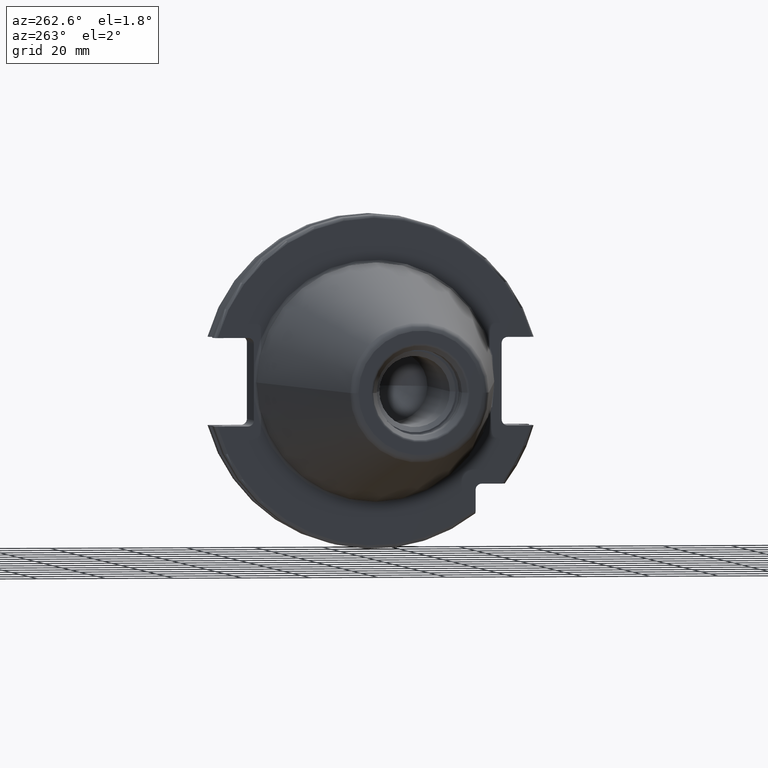
[diagram: clean part render]
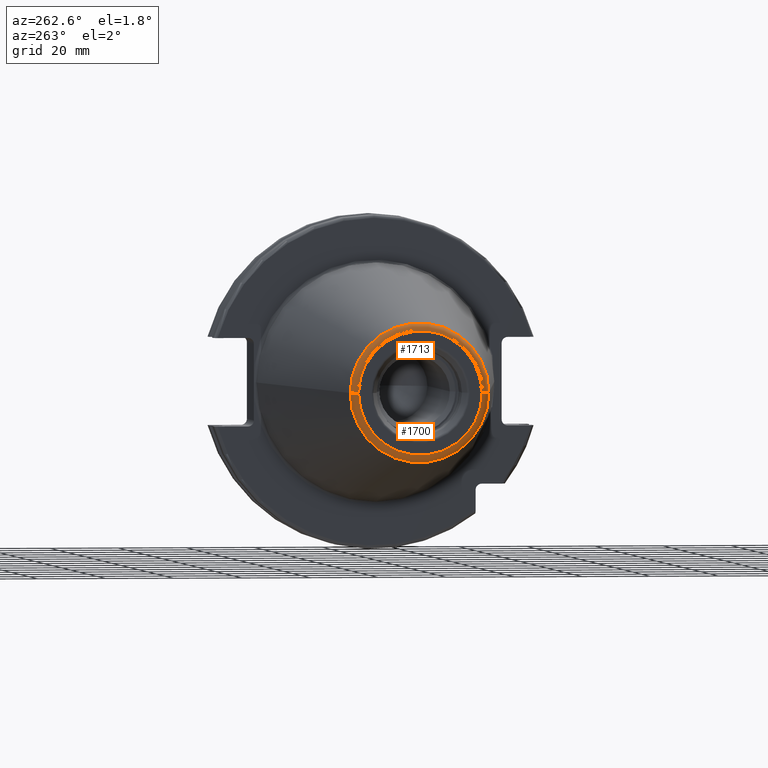
[diagram: same view with one multi-face feature highlighted, each face labeled with its STEP entity id]
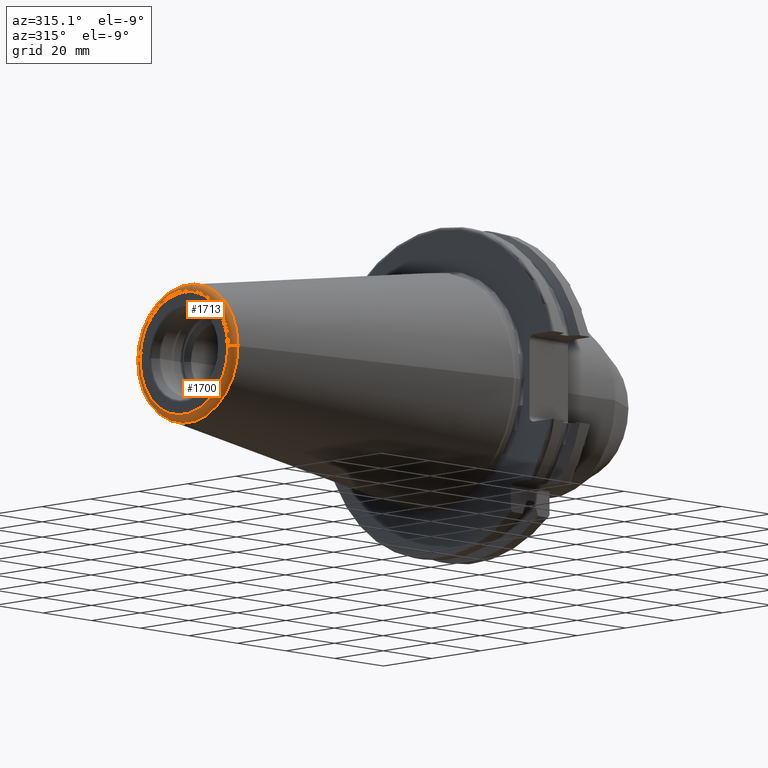
[diagram: same view with one multi-face feature highlighted, each face labeled with its STEP entity id]
A machine part, auxiliary view. The highlighted faces form ONE feature: a constant-radius fillet chain: 2 tangent blend faces with common blend radius 2.25 mm. The faces share edges in the B-rep.
A second angle (auxiliary view) of the same feature is appended — it is thin or edge-on in the first view.
Their STEP definitions:
[1] entity #1700 (Torus):
#2=CARTESIAN_POINT('',(-1.016E2,0.E0,0.E0));
#3=DIRECTION('',(-1.E0,0.E0,0.E0));
#4=DIRECTION('',(0.E0,1.E0,0.E0));
#5=AXIS2_PLACEMENT_3D('',#2,#3,#4);
#22=CARTESIAN_POINT('',(-9.935E1,1.816144700117E1,0.E0));
#23=DIRECTION('',(0.E0,0.E0,1.E0));
#24=DIRECTION('',(-1.443186691705E-1,9.895312636440E-1,0.E0));
#25=AXIS2_PLACEMENT_3D('',#22,#23,#24);
#27=CARTESIAN_POINT('',(-9.935E1,-1.816144700117E1,0.E0));
#28=DIRECTION('',(0.E0,0.E0,-1.E0));
#29=DIRECTION('',(-1.443186691705E-1,-9.895312636440E-1,0.E0));
#30=AXIS2_PLACEMENT_3D('',#27,#28,#29);
#32=CARTESIAN_POINT('',(-9.967471700563E1,0.E0,0.E0));
#33=DIRECTION('',(-1.E0,0.E0,0.E0));
#34=DIRECTION('',(0.E0,1.E0,0.E0));
#35=AXIS2_PLACEMENT_3D('',#32,#33,#34);
#1396=CARTESIAN_POINT('',(-9.967471700563E1,2.038789234437E1,0.E0));
#1397=CARTESIAN_POINT('',(-1.016E2,1.816144700117E1,0.E0));
#1398=VERTEX_POINT('',#1396);
#1399=VERTEX_POINT('',#1397);
#1400=CARTESIAN_POINT('',(-9.967471700563E1,-2.038789234437E1,0.E0));
#1401=CARTESIAN_POINT('',(-1.016E2,-1.816144700117E1,0.E0));
#1402=VERTEX_POINT('',#1400);
#1403=VERTEX_POINT('',#1401);
#1686=CARTESIAN_POINT('',(-9.935E1,0.E0,0.E0));
#1687=DIRECTION('',(1.E0,0.E0,0.E0));
#1688=DIRECTION('',(0.E0,-1.E0,0.E0));
#1689=AXIS2_PLACEMENT_3D('',#1686,#1687,#1688);
#1690=TOROIDAL_SURFACE('',#1689,1.816144700117E1,2.25E0);
#1692=ORIENTED_EDGE('',*,*,#1691,.T.);
#1693=ORIENTED_EDGE('',*,*,#1673,.T.);
#1695=ORIENTED_EDGE('',*,*,#1694,.F.);
#1697=ORIENTED_EDGE('',*,*,#1696,.F.);
#1698=EDGE_LOOP('',(#1692,#1693,#1695,#1697));
#1699=FACE_OUTER_BOUND('',#1698,.F.);
#1700=ADVANCED_FACE('',(#1699),#1690,.T.);
#6=CIRCLE('',#5,1.816144700117E1);
#26=CIRCLE('',#25,2.25E0);
#31=CIRCLE('',#30,2.25E0);
#36=CIRCLE('',#35,2.038789234437E1);
#1673=EDGE_CURVE('',#1399,#1403,#6,.T.);
#1691=EDGE_CURVE('',#1398,#1399,#26,.T.);
#1694=EDGE_CURVE('',#1402,#1403,#31,.T.);
#1696=EDGE_CURVE('',#1398,#1402,#36,.T.);
[2] entity #1713 (Torus):
#7=CARTESIAN_POINT('',(-1.016E2,0.E0,0.E0));
#8=DIRECTION('',(1.E0,0.E0,0.E0));
#9=DIRECTION('',(0.E0,1.E0,0.E0));
#10=AXIS2_PLACEMENT_3D('',#7,#8,#9);
#22=CARTESIAN_POINT('',(-9.935E1,1.816144700117E1,0.E0));
#23=DIRECTION('',(0.E0,0.E0,1.E0));
#24=DIRECTION('',(-1.443186691705E-1,9.895312636440E-1,0.E0));
#25=AXIS2_PLACEMENT_3D('',#22,#23,#24);
#27=CARTESIAN_POINT('',(-9.935E1,-1.816144700117E1,0.E0));
#28=DIRECTION('',(0.E0,0.E0,-1.E0));
#29=DIRECTION('',(-1.443186691705E-1,-9.895312636440E-1,0.E0));
#30=AXIS2_PLACEMENT_3D('',#27,#28,#29);
#37=CARTESIAN_POINT('',(-9.967471700563E1,0.E0,0.E0));
#38=DIRECTION('',(1.E0,0.E0,0.E0));
#39=DIRECTION('',(0.E0,1.E0,0.E0));
#40=AXIS2_PLACEMENT_3D('',#37,#38,#39);
#1396=CARTESIAN_POINT('',(-9.967471700563E1,2.038789234437E1,0.E0));
#1397=CARTESIAN_POINT('',(-1.016E2,1.816144700117E1,0.E0));
#1398=VERTEX_POINT('',#1396);
#1399=VERTEX_POINT('',#1397);
#1400=CARTESIAN_POINT('',(-9.967471700563E1,-2.038789234437E1,0.E0));
#1401=CARTESIAN_POINT('',(-1.016E2,-1.816144700117E1,0.E0));
#1402=VERTEX_POINT('',#1400);
#1403=VERTEX_POINT('',#1401);
#1701=CARTESIAN_POINT('',(-9.935E1,0.E0,0.E0));
#1702=DIRECTION('',(1.E0,0.E0,0.E0));
#1703=DIRECTION('',(0.E0,-1.E0,0.E0));
#1704=AXIS2_PLACEMENT_3D('',#1701,#1702,#1703);
#1705=TOROIDAL_SURFACE('',#1704,1.816144700117E1,2.25E0);
#1706=ORIENTED_EDGE('',*,*,#1691,.F.);
#1708=ORIENTED_EDGE('',*,*,#1707,.T.);
#1709=ORIENTED_EDGE('',*,*,#1694,.T.);
#1710=ORIENTED_EDGE('',*,*,#1675,.F.);
#1711=EDGE_LOOP('',(#1706,#1708,#1709,#1710));
#1712=FACE_OUTER_BOUND('',#1711,.F.);
#1713=ADVANCED_FACE('',(#1712),#1705,.T.);
#11=CIRCLE('',#10,1.816144700117E1);
#26=CIRCLE('',#25,2.25E0);
#31=CIRCLE('',#30,2.25E0);
#41=CIRCLE('',#40,2.038789234437E1);
#1675=EDGE_CURVE('',#1399,#1403,#11,.T.);
#1691=EDGE_CURVE('',#1398,#1399,#26,.T.);
#1694=EDGE_CURVE('',#1402,#1403,#31,.T.);
#1707=EDGE_CURVE('',#1398,#1402,#41,.T.);